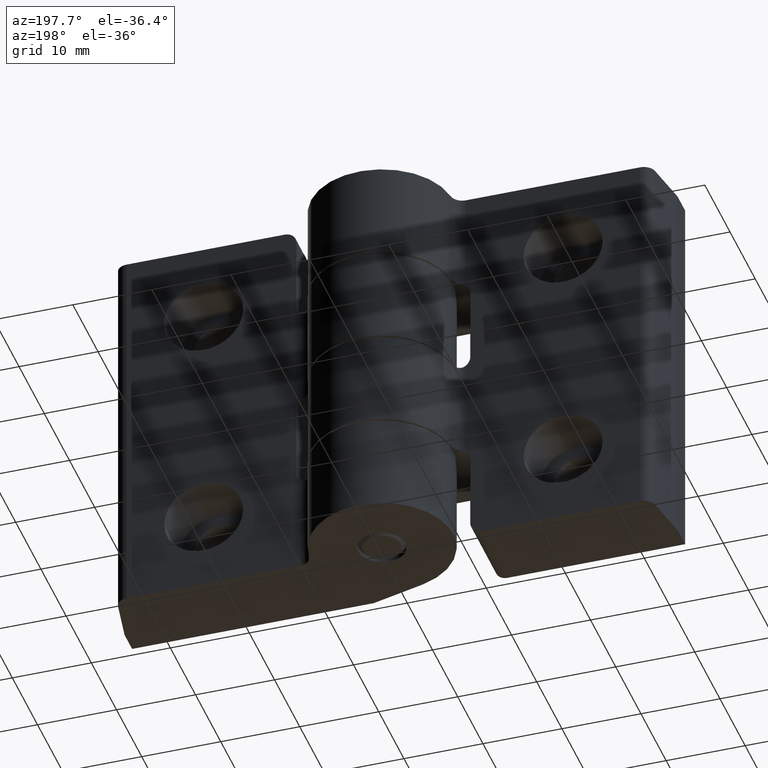
[diagram: clean part render]
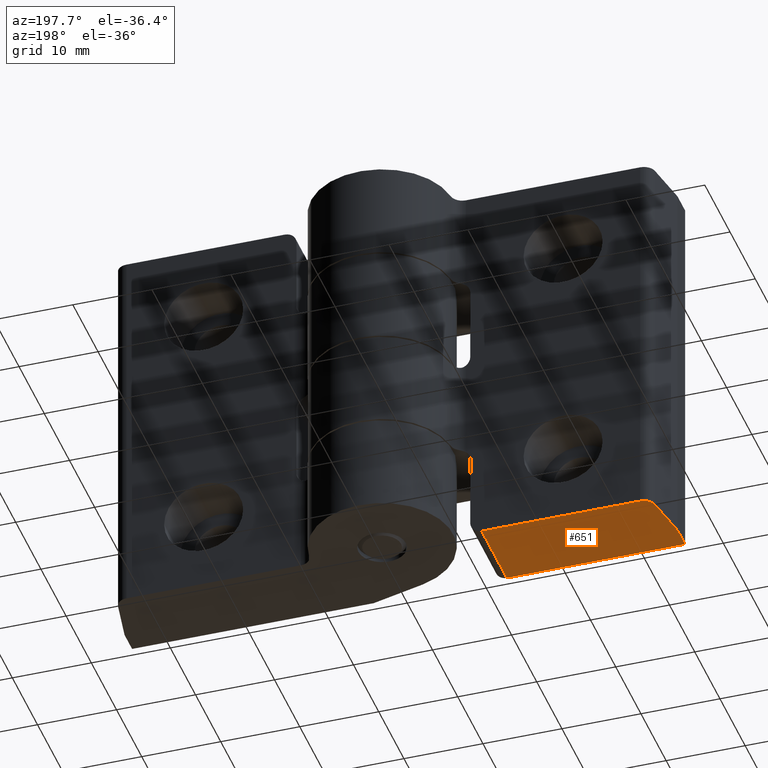
[diagram: same view with one face highlighted and labeled with its STEP entity id]
A machine part, auxiliary view. The second image highlights one B-rep face of the part: STEP entity #651.
In plain terms, the highlighted planar face has unit normal (0, 0, 1).
Its self-contained STEP definition (entity closure, byte-faithful):
#59=LINE('',#1166,#107);
#67=LINE('',#1187,#115);
#69=LINE('',#1191,#117);
#70=LINE('',#1193,#118);
#71=LINE('',#1196,#119);
#107=VECTOR('',#930,10.);
#115=VECTOR('',#952,10.);
#117=VECTOR('',#956,10.);
#118=VECTOR('',#957,10.);
#119=VECTOR('',#960,10.);
#179=FACE_OUTER_BOUND('',#221,.T.);
#221=EDGE_LOOP('',(#543,#544,#545,#546,#547,#548));
#272=CIRCLE('',#784,1.49996999999934);
#322=VERTEX_POINT('',#1163);
#323=VERTEX_POINT('',#1165);
#329=VERTEX_POINT('',#1185);
#330=VERTEX_POINT('',#1190);
#331=VERTEX_POINT('',#1192);
#332=VERTEX_POINT('',#1194);
#397=EDGE_CURVE('',#323,#322,#59,.T.);
#408=EDGE_CURVE('',#322,#329,#67,.T.);
#410=EDGE_CURVE('',#329,#330,#69,.T.);
#411=EDGE_CURVE('',#330,#331,#70,.T.);
#412=EDGE_CURVE('',#331,#332,#272,.T.);
#413=EDGE_CURVE('',#332,#323,#71,.T.);
#543=ORIENTED_EDGE('',*,*,#397,.T.);
#544=ORIENTED_EDGE('',*,*,#408,.T.);
#545=ORIENTED_EDGE('',*,*,#410,.T.);
#546=ORIENTED_EDGE('',*,*,#411,.T.);
#547=ORIENTED_EDGE('',*,*,#412,.T.);
#548=ORIENTED_EDGE('',*,*,#413,.T.);
#622=PLANE('',#783);
#651=ADVANCED_FACE('',(#179),#622,.F.);
#783=AXIS2_PLACEMENT_3D('',#1189,#954,#955);
#784=AXIS2_PLACEMENT_3D('',#1195,#958,#959);
#930=DIRECTION('',(0.,-1.,0.));
#952=DIRECTION('',(-1.,0.,0.));
#954=DIRECTION('center_axis',(0.,0.,1.));
#955=DIRECTION('ref_axis',(1.,0.,0.));
#956=DIRECTION('',(0.,1.,0.));
#957=DIRECTION('',(0.173693560711791,0.984799749678715,0.));
#958=DIRECTION('center_axis',(0.,0.,-1.));
#959=DIRECTION('ref_axis',(8.76095160189786E-6,0.999999999961623,0.));
#960=DIRECTION('',(1.,0.,0.));
#1163=CARTESIAN_POINT('',(-12.445236873719,-10.5,-25.));
#1165=CARTESIAN_POINT('',(-12.445236873719,-0.5,-25.));
#1166=CARTESIAN_POINT('',(-12.445236873719,0.,-25.));
#1185=CARTESIAN_POINT('',(-35.,-10.5,-25.));
#1187=CARTESIAN_POINT('',(-35.,-10.5,-25.));
#1189=CARTESIAN_POINT('Origin',(-13.7916156564348,-3.74383997817713,-25.));
#1190=CARTESIAN_POINT('',(-35.,-7.5,-25.));
#1191=CARTESIAN_POINT('',(-35.,-7.5,-25.));
#1192=CARTESIAN_POINT('',(-33.983987956595,-1.7394617168564,-25.));
#1193=CARTESIAN_POINT('',(-33.983987956595,-1.7394617168564,-25.));
#1194=CARTESIAN_POINT('',(-32.5068,-0.5,-25.));
#1195=CARTESIAN_POINT('Origin',(-32.5068131411646,-1.99996999994177,-25.));
#1196=CARTESIAN_POINT('',(-10.4522,-0.5,-25.));